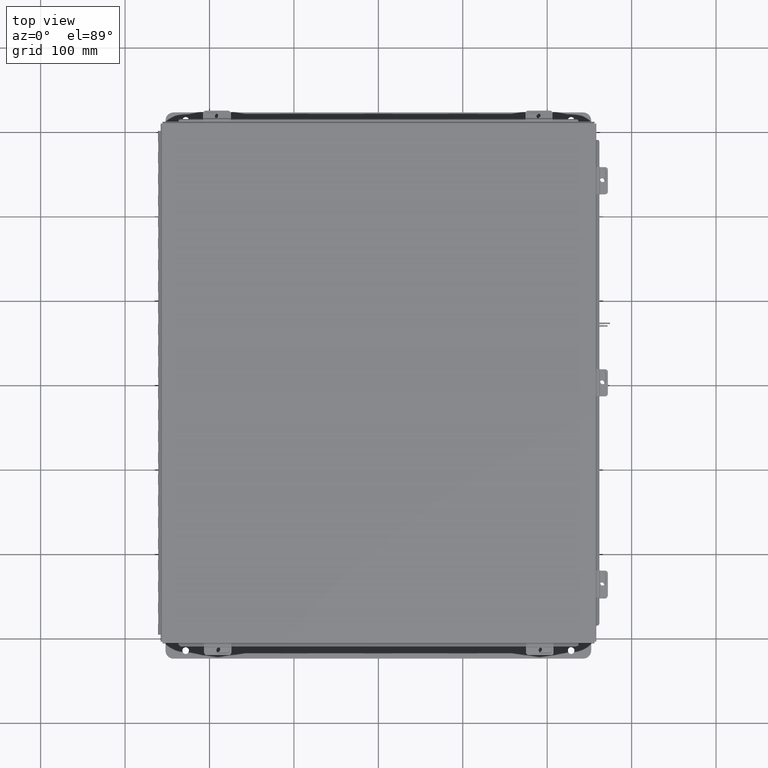
[diagram: clean part render]
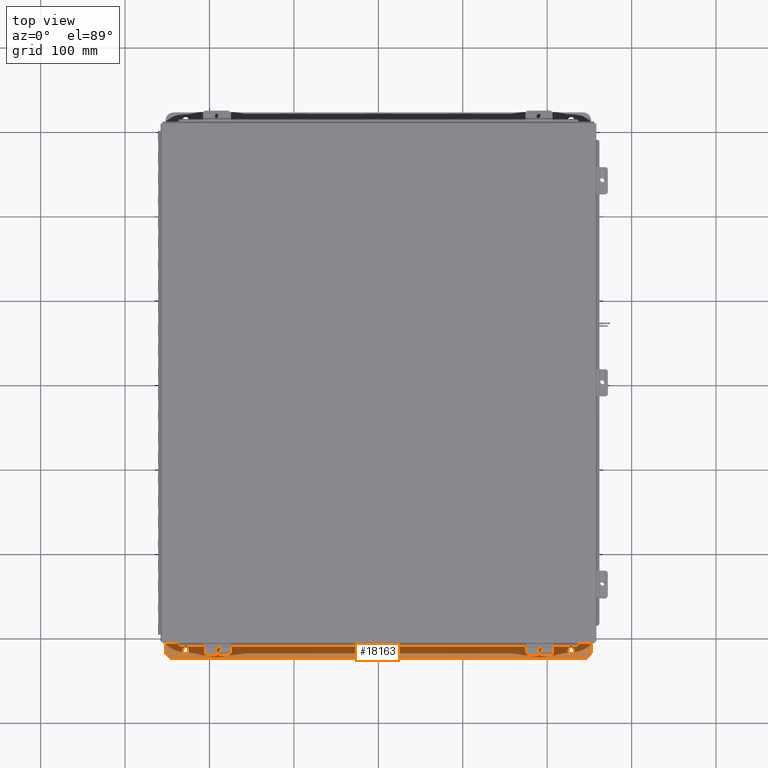
[diagram: same view with one face highlighted and labeled with its STEP entity id]
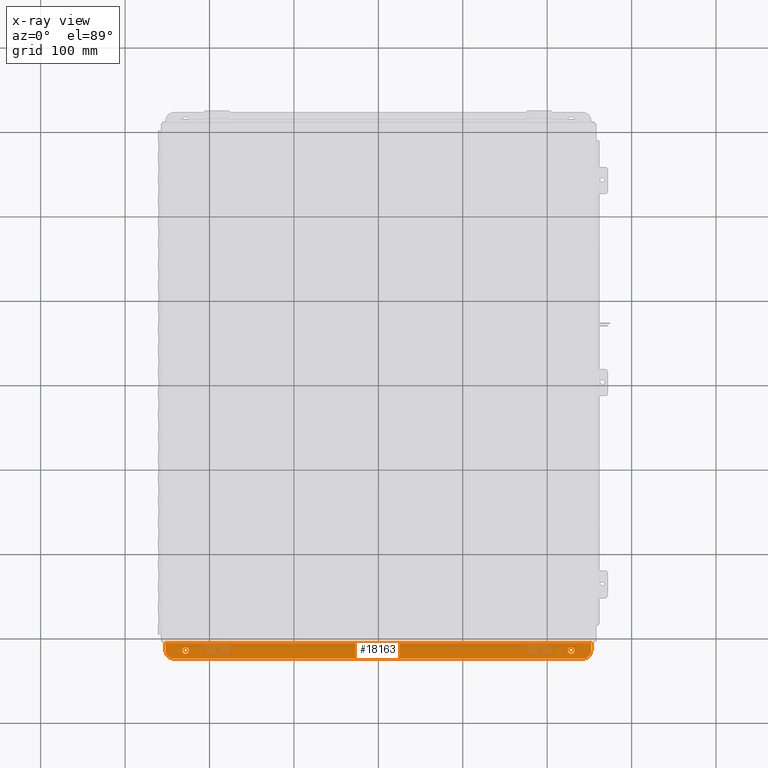
[diagram: x-ray of the same camera — body ghosted, the highlighted face saturated]
A machine part, top view. The second image highlights one B-rep face of the part: STEP entity #18163.
The next image is the same camera in x-ray: the body ghosted, the highlighted face saturated — about 28% of this face is hidden behind the body in this view.
In plain terms, the highlighted planar face has unit normal (0, -0, 1).
Its self-contained STEP definition (entity closure, byte-faithful):
#188 = VERTEX_POINT ( 'NONE', #13590 ) ;
#236 = ORIENTED_EDGE ( 'NONE', *, *, #12145, .T. ) ;
#426 = DIRECTION ( 'NONE',  ( 0.0000000000000000000, 3.702694488566362300E-015, 1.000000000000000000 ) ) ;
#533 = VERTEX_POINT ( 'NONE', #8161 ) ;
#879 = EDGE_CURVE ( 'NONE', #15878, #961, #5566, .T. ) ;
#961 = VERTEX_POINT ( 'NONE', #24695 ) ;
#987 = DIRECTION ( 'NONE',  ( 0.0000000000000000000, -1.000000000000000000, 3.502369222646487400E-015 ) ) ;
#994 = DIRECTION ( 'NONE',  ( -0.0000000000000000000, -3.702694488566362300E-015, -1.000000000000000000 ) ) ;
#1154 = CARTESIAN_POINT ( 'NONE',  ( -8.987799999999998200, 0.3628000000000008400, -4.112299999999996700 ) ) ;
#1319 = ORIENTED_EDGE ( 'NONE', *, *, #21151, .T. ) ;
#1568 = VERTEX_POINT ( 'NONE', #13698 ) ;
#1647 = EDGE_CURVE ( 'NONE', #15811, #15192, #3138, .T. ) ;
#2514 = CARTESIAN_POINT ( 'NONE',  ( 8.987799999999998200, 0.3628000000000161700, -4.112300000000001200 ) ) ;
#2856 = EDGE_CURVE ( 'NONE', #188, #1568, #21470, .T. ) ;
#2859 = DIRECTION ( 'NONE',  ( -4.919856193148104900E-031, -1.000000000000000000, 3.702694488566362300E-015 ) ) ;
#2920 = DIRECTION ( 'NONE',  ( 0.0000000000000000000, 3.702694488566362300E-015, 1.000000000000000000 ) ) ;
#3026 = VERTEX_POINT ( 'NONE', #20335 ) ;
#3033 = AXIS2_PLACEMENT_3D ( 'NONE', #17702, #15716, #23584 ) ;
#3138 = CIRCLE ( 'NONE', #14525, 0.1560000000000001700 ) ;
#3229 = CARTESIAN_POINT ( 'NONE',  ( -2.035385365534024800E-024, -1.311287036958846300E-014, -4.112299999999999400 ) ) ;
#3419 = PLANE ( 'NONE',  #4006 ) ;
#3542 = DIRECTION ( 'NONE',  ( 0.0000000000000000000, -1.000000000000000000, 4.370956789862820400E-015 ) ) ;
#3851 = DIRECTION ( 'NONE',  ( 0.0000000000000000000, 3.702694488566362300E-015, 1.000000000000000000 ) ) ;
#3953 = CARTESIAN_POINT ( 'NONE',  ( -9.925299999999980500, 0.3628000000000008400, -4.112299999999996700 ) ) ;
#4006 = AXIS2_PLACEMENT_3D ( 'NONE', #3229, #2920, #2859 ) ;
#4185 = DIRECTION ( 'NONE',  ( -4.919856193148104900E-031, -1.000000000000000000, 3.702694488566362300E-015 ) ) ;
#4646 = EDGE_CURVE ( 'NONE', #9109, #1568, #9022, .T. ) ;
#5445 = CARTESIAN_POINT ( 'NONE',  ( -8.987800000000007100, 0.2068000000000006800, -4.112299999999995800 ) ) ;
#5566 = CIRCLE ( 'NONE', #3033, 0.1560000000000001700 ) ;
#5748 = CARTESIAN_POINT ( 'NONE',  ( 9.925300000000016000, 0.7378000000000163300, -4.112300000000002100 ) ) ;
#5774 = CARTESIAN_POINT ( 'NONE',  ( 8.987799999999989400, 0.5188000000000163600, -4.112300000000001200 ) ) ;
#6022 = CARTESIAN_POINT ( 'NONE',  ( 9.925299999999998200, 1.748382715945128500E-014, -4.112299999999995000 ) ) ;
#6283 = CARTESIAN_POINT ( 'NONE',  ( -9.550299999999998200, 0.3628000000000008400, -4.112300000000001200 ) ) ;
#6462 = AXIS2_PLACEMENT_3D ( 'NONE', #6283, #3851, #3542 ) ;
#6756 = ORIENTED_EDGE ( 'NONE', *, *, #8774, .T. ) ;
#6795 = ORIENTED_EDGE ( 'NONE', *, *, #12559, .F. ) ;
#6796 = ORIENTED_EDGE ( 'NONE', *, *, #8985, .F. ) ;
#7895 = DIRECTION ( 'NONE',  ( 1.000000000000000000, 4.910036603141682400E-031, -0.0000000000000000000 ) ) ;
#8161 = CARTESIAN_POINT ( 'NONE',  ( -9.925299999999996500, 0.01299999999999792100, -4.112299999999999400 ) ) ;
#8474 = FACE_OUTER_BOUND ( 'NONE', #14484, .T. ) ;
#8488 = FACE_BOUND ( 'NONE', #13932, .T. ) ;
#8566 = FACE_BOUND ( 'NONE', #13437, .T. ) ;
#8774 = EDGE_CURVE ( 'NONE', #188, #23442, #10861, .T. ) ;
#8910 = CARTESIAN_POINT ( 'NONE',  ( 9.925300000000016000, 0.3628000000000161700, -4.112300000000001200 ) ) ;
#8985 = EDGE_CURVE ( 'NONE', #3026, #533, #9631, .T. ) ;
#9022 = CIRCLE ( 'NONE', #12038, 0.3750000000000000600 ) ;
#9109 = VERTEX_POINT ( 'NONE', #8910 ) ;
#9323 = DIRECTION ( 'NONE',  ( -1.000000000000000000, -2.752408485047608900E-017, 0.0000000000000000000 ) ) ;
#9581 = VECTOR ( 'NONE', #9323, 39.37007874015748100 ) ;
#9631 = LINE ( 'NONE', #23543, #9581 ) ;
#10152 = DIRECTION ( 'NONE',  ( 0.0000000000000000000, -1.000000000000000000, 4.370956789862820400E-015 ) ) ;
#10861 = CIRCLE ( 'NONE', #6462, 0.3750000000000000600 ) ;
#11420 = VECTOR ( 'NONE', #4185, 39.37007874015748100 ) ;
#11613 = ORIENTED_EDGE ( 'NONE', *, *, #2856, .F. ) ;
#12038 = AXIS2_PLACEMENT_3D ( 'NONE', #14831, #426, #10152 ) ;
#12057 = LINE ( 'NONE', #6022, #11420 ) ;
#12145 = EDGE_CURVE ( 'NONE', #15192, #15811, #14983, .T. ) ;
#12559 = EDGE_CURVE ( 'NONE', #9109, #3026, #12057, .T. ) ;
#13243 = DIRECTION ( 'NONE',  ( 0.0000000000000000000, -1.000000000000000000, 3.502369222646487400E-015 ) ) ;
#13317 = DIRECTION ( 'NONE',  ( -0.0000000000000000000, -3.702694488566362300E-015, -1.000000000000000000 ) ) ;
#13409 = CARTESIAN_POINT ( 'NONE',  ( 8.987799999999998200, 0.3628000000000161700, -4.112300000000001200 ) ) ;
#13437 = EDGE_LOOP ( 'NONE', ( #1319, #24042 ) ) ;
#13590 = CARTESIAN_POINT ( 'NONE',  ( -9.550299999999998200, 0.7378000000000011200, -4.112299999999998500 ) ) ;
#13698 = CARTESIAN_POINT ( 'NONE',  ( 9.550299999999998200, 0.7378000000000163300, -4.112300000000002100 ) ) ;
#13932 = EDGE_LOOP ( 'NONE', ( #236, #21015 ) ) ;
#14484 = EDGE_LOOP ( 'NONE', ( #11613, #6756, #15542, #6796, #6795, #20718 ) ) ;
#14503 = VECTOR ( 'NONE', #16113, 39.37007874015748100 ) ;
#14525 = AXIS2_PLACEMENT_3D ( 'NONE', #2514, #24398, #16262 ) ;
#14548 = LINE ( 'NONE', #20794, #14503 ) ;
#14702 = CARTESIAN_POINT ( 'NONE',  ( 8.987799999999989400, 0.2068000000000159700, -4.112300000000000300 ) ) ;
#14831 = CARTESIAN_POINT ( 'NONE',  ( 9.550299999999998200, 0.3628000000000161700, -4.112299999999996700 ) ) ;
#14983 = CIRCLE ( 'NONE', #17150, 0.1560000000000001700 ) ;
#15192 = VERTEX_POINT ( 'NONE', #5774 ) ;
#15542 = ORIENTED_EDGE ( 'NONE', *, *, #16667, .F. ) ;
#15716 = DIRECTION ( 'NONE',  ( -0.0000000000000000000, -3.702694488566362300E-015, -1.000000000000000000 ) ) ;
#15811 = VERTEX_POINT ( 'NONE', #14702 ) ;
#15819 = AXIS2_PLACEMENT_3D ( 'NONE', #1154, #994, #987 ) ;
#15878 = VERTEX_POINT ( 'NONE', #5445 ) ;
#16113 = DIRECTION ( 'NONE',  ( 4.919856193148104900E-031, 1.000000000000000000, -3.702694488566362300E-015 ) ) ;
#16262 = DIRECTION ( 'NONE',  ( 0.0000000000000000000, -1.000000000000000000, 3.502369222646487400E-015 ) ) ;
#16667 = EDGE_CURVE ( 'NONE', #533, #23442, #14548, .T. ) ;
#17150 = AXIS2_PLACEMENT_3D ( 'NONE', #13409, #13317, #13243 ) ;
#17702 = CARTESIAN_POINT ( 'NONE',  ( -8.987799999999998200, 0.3628000000000008400, -4.112299999999996700 ) ) ;
#17793 = VECTOR ( 'NONE', #7895, 39.37007874015748100 ) ;
#18163 = ADVANCED_FACE ( 'NONE', ( #8566, #8488, #8474 ), #3419, .T. ) ;
#20335 = CARTESIAN_POINT ( 'NONE',  ( 9.925299999999998200, 0.01300000000001759100, -4.112299999999995000 ) ) ;
#20718 = ORIENTED_EDGE ( 'NONE', *, *, #4646, .T. ) ;
#20794 = CARTESIAN_POINT ( 'NONE',  ( -9.925299999999980500, 0.7378000000000011200, -4.112300000000002100 ) ) ;
#21015 = ORIENTED_EDGE ( 'NONE', *, *, #1647, .T. ) ;
#21151 = EDGE_CURVE ( 'NONE', #961, #15878, #21909, .T. ) ;
#21470 = LINE ( 'NONE', #5748, #17793 ) ;
#21909 = CIRCLE ( 'NONE', #15819, 0.1560000000000001700 ) ;
#23442 = VERTEX_POINT ( 'NONE', #3953 ) ;
#23543 = CARTESIAN_POINT ( 'NONE',  ( 9.925299999999998200, 0.01300000000001759100, -4.112299999999995000 ) ) ;
#23584 = DIRECTION ( 'NONE',  ( 0.0000000000000000000, -1.000000000000000000, 3.502369222646487400E-015 ) ) ;
#24042 = ORIENTED_EDGE ( 'NONE', *, *, #879, .T. ) ;
#24398 = DIRECTION ( 'NONE',  ( -0.0000000000000000000, -3.702694488566362300E-015, -1.000000000000000000 ) ) ;
#24695 = CARTESIAN_POINT ( 'NONE',  ( -8.987800000000007100, 0.5188000000000010400, -4.112299999999996700 ) ) ;